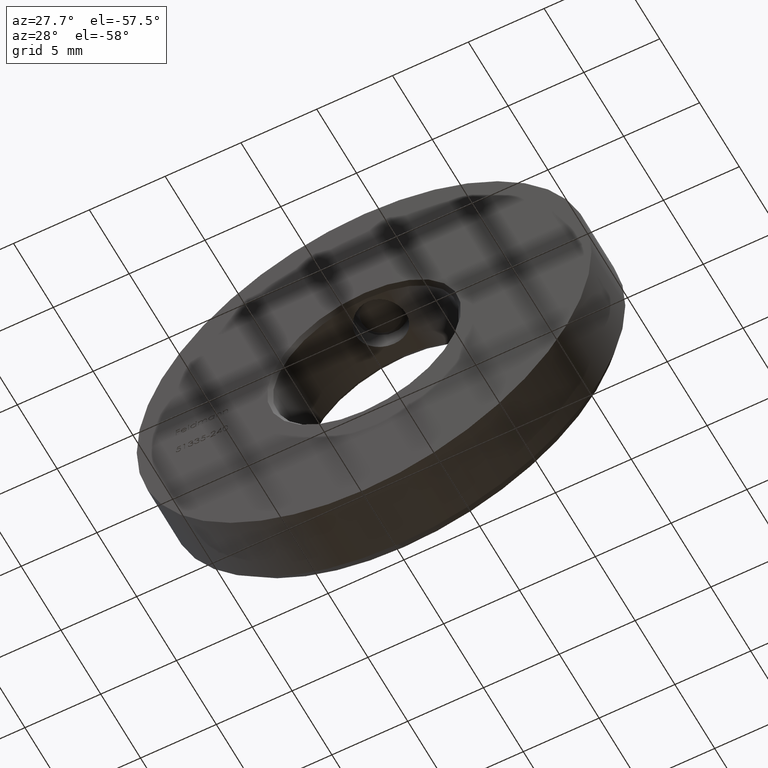
[diagram: clean part render]
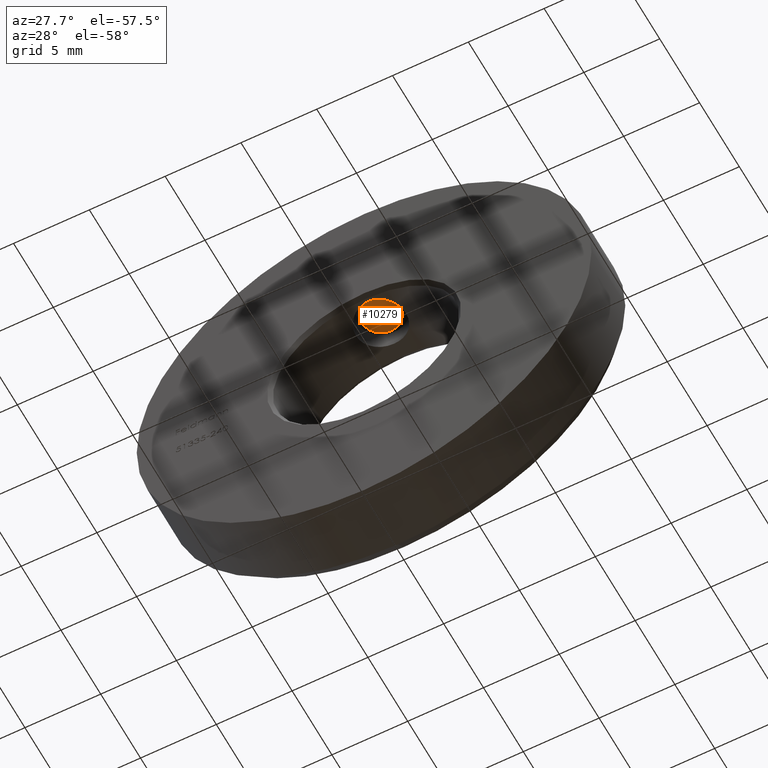
[diagram: same view with one face highlighted and labeled with its STEP entity id]
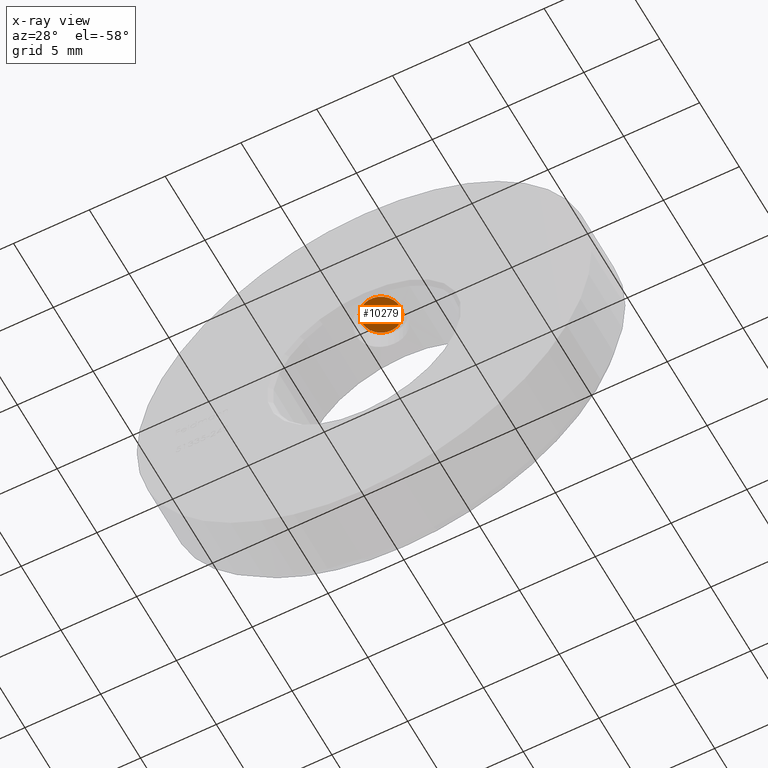
[diagram: x-ray of the same camera — body ghosted, the highlighted face saturated]
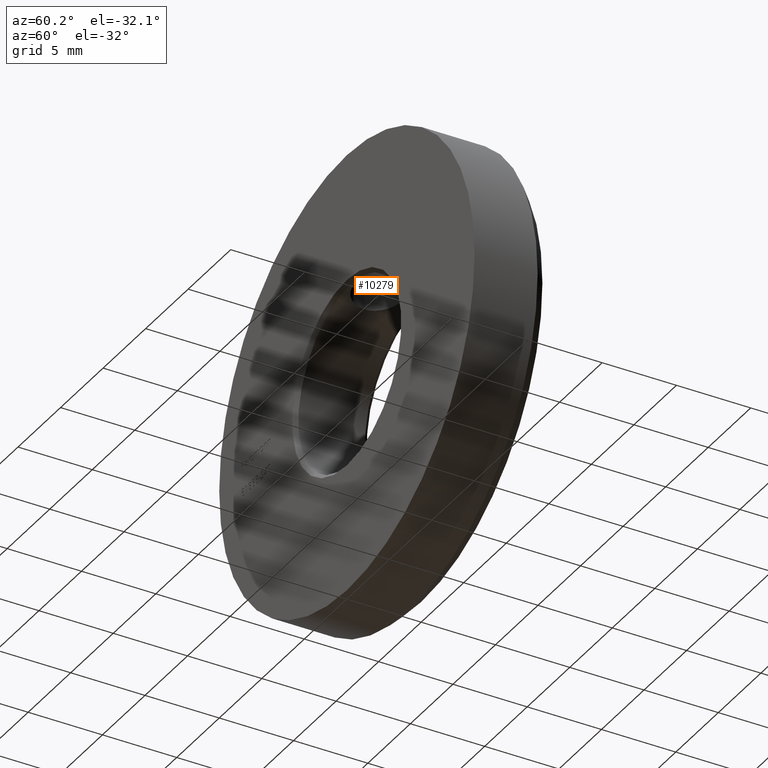
[diagram: same view with one face highlighted and labeled with its STEP entity id]
A machine part, auxiliary view. The second image highlights one B-rep face of the part: STEP entity #10279.
The next image is the same camera in x-ray: the body ghosted, the highlighted face saturated — about 0% of this face is hidden behind the body in this view.
A second angle (auxiliary view) of the same face is appended — the face is thin or edge-on in the first view.
In plain terms, the highlighted planar face has unit normal (0, 0, 1).
Its self-contained STEP definition (entity closure, byte-faithful):
#369 = DIRECTION ( 'NONE',  ( 0.000000000000000000, -0.000000000000000000, 1.000000000000000000 ) ) ;
#559 = EDGE_LOOP ( 'NONE', ( #9810, #8019 ) ) ;
#991 = DIRECTION ( 'NONE',  ( 1.000000000000000000, 0.000000000000000000, 0.000000000000000000 ) ) ;
#1790 = DIRECTION ( 'NONE',  ( 0.000000000000000000, 0.000000000000000000, -1.000000000000000000 ) ) ;
#2939 = CARTESIAN_POINT ( 'NONE',  ( 0.000000000000000000, 2.000000000000000000, -8.000000000000000000 ) ) ;
#4924 = CIRCLE ( 'NONE', #7950, 1.249999999999997558 ) ;
#5019 = CARTESIAN_POINT ( 'NONE',  ( -1.249999999999997558, 1.990051048614446897E-16, -8.000000000000000000 ) ) ;
#5071 = DIRECTION ( 'NONE',  ( 1.000000000000000000, 0.000000000000000000, 0.000000000000000000 ) ) ;
#6180 = EDGE_CURVE ( 'NONE', #7716, #7573, #7466, .T. ) ;
#7056 = AXIS2_PLACEMENT_3D ( 'NONE', #14014, #15028, #991 ) ;
#7162 = AXIS2_PLACEMENT_3D ( 'NONE', #2939, #369, #5071 ) ;
#7466 = CIRCLE ( 'NONE', #7056, 1.249999999999997558 ) ;
#7573 = VERTEX_POINT ( 'NONE', #11761 ) ;
#7716 = VERTEX_POINT ( 'NONE', #5019 ) ;
#7950 = AXIS2_PLACEMENT_3D ( 'NONE', #14557, #1790, #9928 ) ;
#8019 = ORIENTED_EDGE ( 'NONE', *, *, #6180, .T. ) ;
#8228 = FACE_OUTER_BOUND ( 'NONE', #559, .T. ) ;
#9810 = ORIENTED_EDGE ( 'NONE', *, *, #10565, .T. ) ;
#9928 = DIRECTION ( 'NONE',  ( 1.000000000000000000, 0.000000000000000000, 0.000000000000000000 ) ) ;
#10279 = ADVANCED_FACE ( 'NONE', ( #8228 ), #13189, .F. ) ;
#10565 = EDGE_CURVE ( 'NONE', #7573, #7716, #4924, .T. ) ;
#11761 = CARTESIAN_POINT ( 'NONE',  ( 1.249999999999997558, 0.000000000000000000, -8.000000000000000000 ) ) ;
#13189 = PLANE ( 'NONE',  #7162 ) ;
#14014 = CARTESIAN_POINT ( 'NONE',  ( 0.000000000000000000, 0.000000000000000000, -8.000000000000000000 ) ) ;
#14557 = CARTESIAN_POINT ( 'NONE',  ( 0.000000000000000000, 0.000000000000000000, -8.000000000000000000 ) ) ;
#15028 = DIRECTION ( 'NONE',  ( 0.000000000000000000, 0.000000000000000000, -1.000000000000000000 ) ) ;